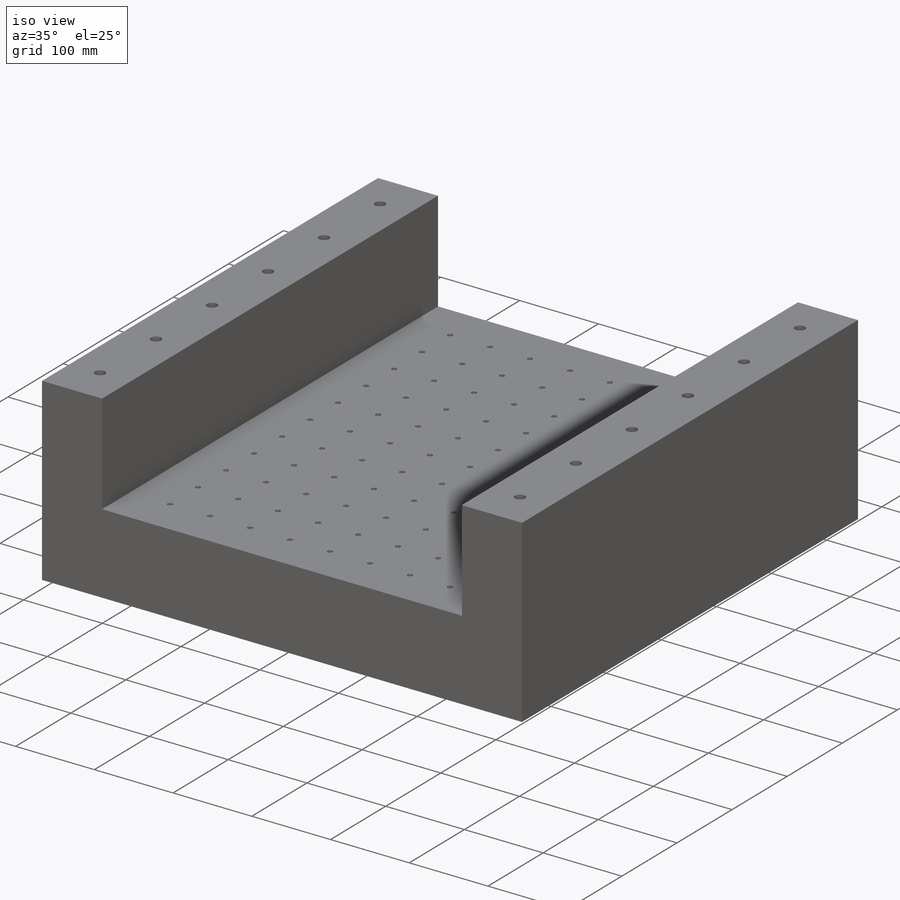
[diagram: iso view]
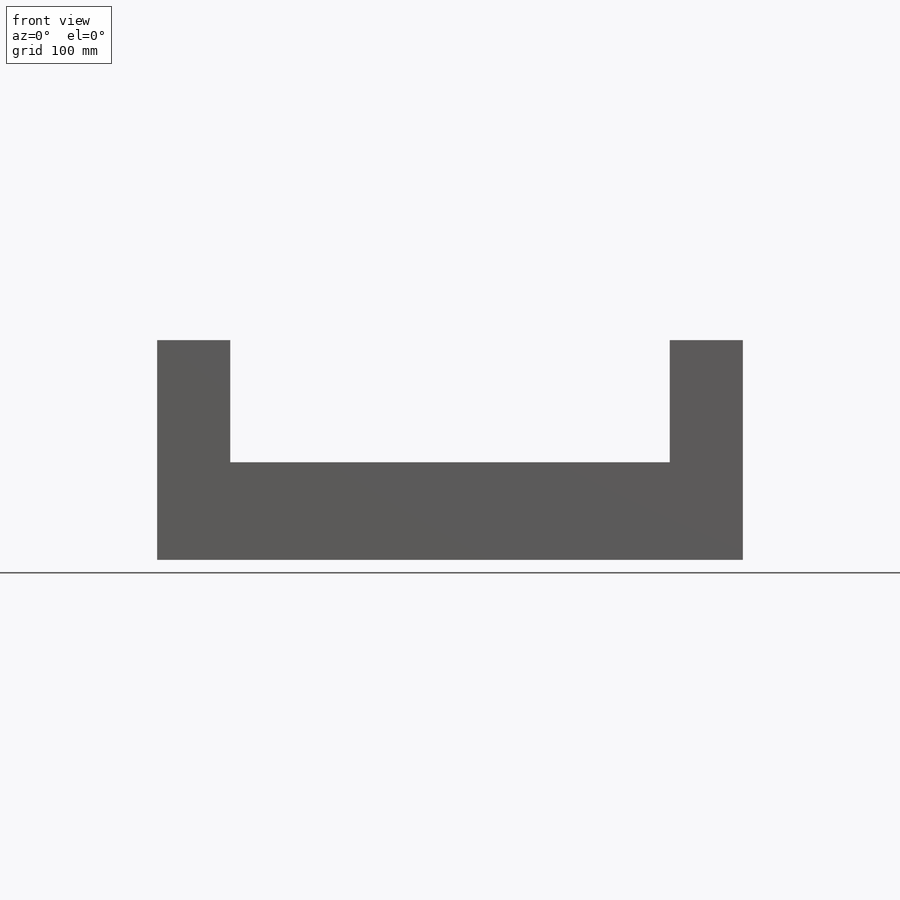
[diagram: front view]
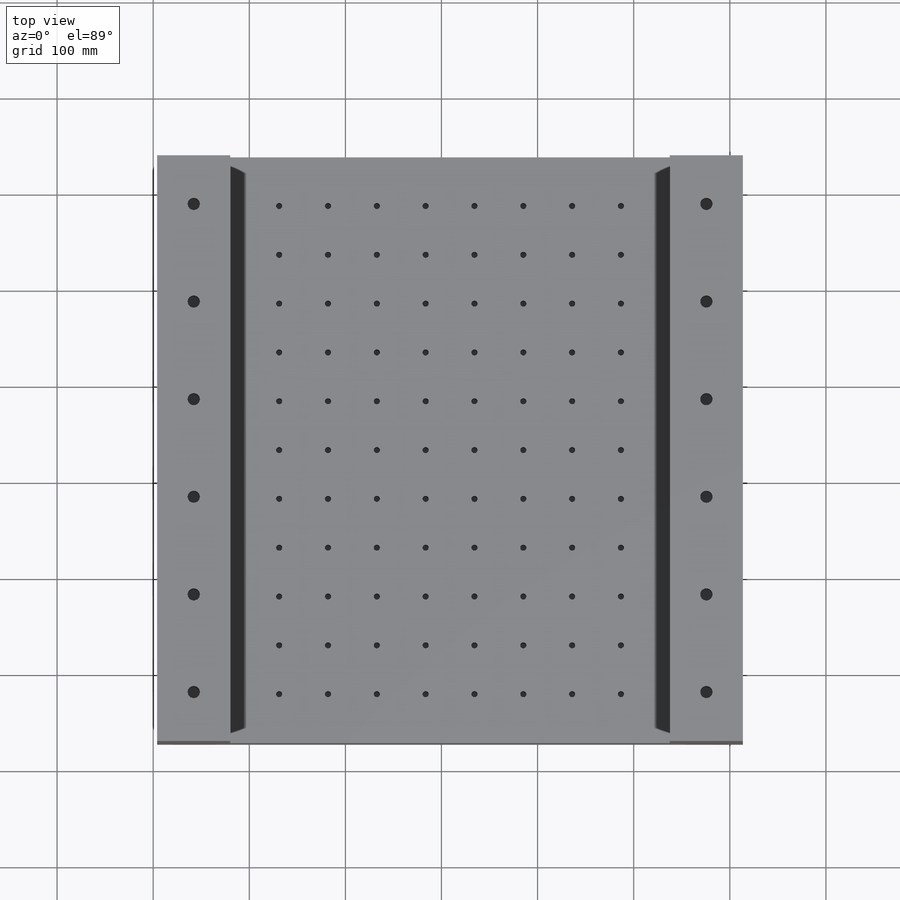
[diagram: top view]
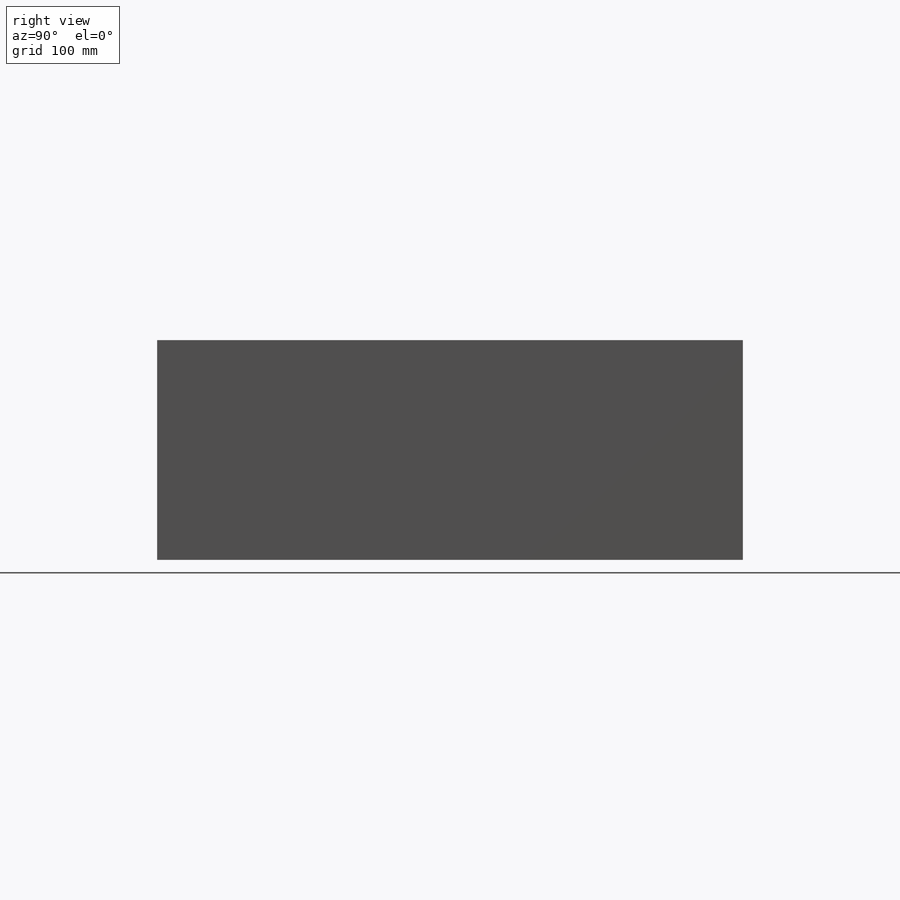
[diagram: right view]
SOLIDWORKS PART (.sldprt)
format: sldprt  version: not decoded by parser v0  size: 334,848 bytes
history: native  units: mm
features: sketch x4, extrude x2, cut_extrude x2, material x1, pattern_linear x1 (+11 scaffold rows collapsed)
feature tree (21):
  scaffold x11  (default folders/planes/origin — collapsed)
  material  "Material <not specified>"
  sketch  "Sketch2"  dims[D1=609.6mm D2=609.6mm]
  extrude  "Boss-Extrude1"  Depth=101.6mm
  sketch  "Sketch4"  dims[D1=76.2mm D2=76.2mm]
  extrude  "Boss-Extrude2"  Depth=127mm
  sketch  "Sketch5"  dims[D1=12.7mm D2=50.8mm D4=101.6mm D5=38.1mm D3=6.0]
  cut_extrude  "Cut-Extrude1"  Depth=50.8mm
  pattern_linear  "LPattern1"  Count1=2 Count2=1 Spacing1=533.4mm Spacing2=50mm
  sketch  "Sketch6"  dims[c1.D1=6.35mm c1.D2=12.7mm c1.D3=12.7mm c2.D2=50.8mm c2.D3=50.8mm c2.D6=50.8mm c2.D4=11.0 c2.D5=8.0]
  cut_extrude  "Cut-Extrude2"  Depth=50.8mm
decode coverage: 9 of 9 modeling features carry decoded parameters
note: suppression state not decoded; provenance and decode notes live in map.json
